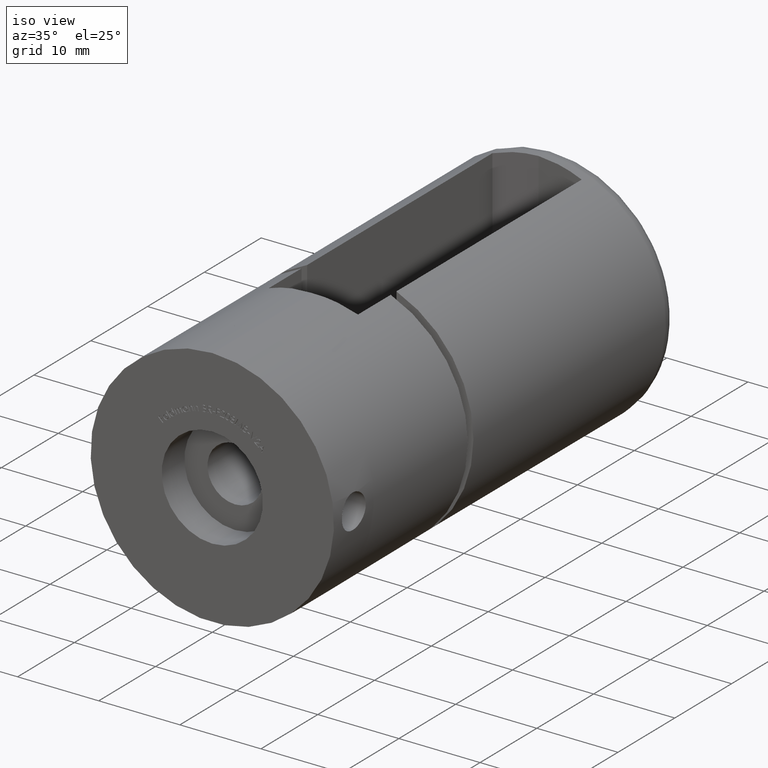
[diagram: clean part render]
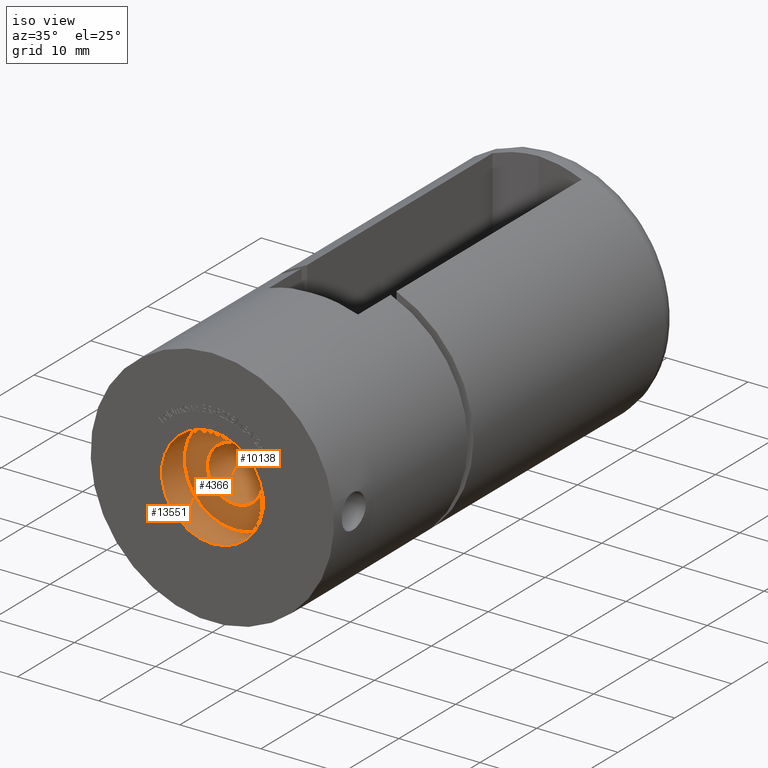
[diagram: same view with one multi-face feature highlighted, each face labeled with its STEP entity id]
A machine part, iso view. The highlighted faces form ONE feature: a stepped (counterbored) hole: 2 coaxial cylindrical walls of radii 3.4 -> 6.25 mm joined by 1 annular planar shoulder face(s). The faces share edges in the B-rep.
Their STEP definitions:
[1] entity #13551 (Cylinder):
#564 = CARTESIAN_POINT ( 'NONE',  ( 0.0000000000000000000, 4.000000000000000000, 0.0000000000000000000 ) ) ;
#1675 = VERTEX_POINT ( 'NONE', #13008 ) ;
#1900 = DIRECTION ( 'NONE',  ( -0.0000000000000000000, -1.000000000000000000, -0.0000000000000000000 ) ) ;
#2476 = ORIENTED_EDGE ( 'NONE', *, *, #10586, .T. ) ;
#2746 = CARTESIAN_POINT ( 'NONE',  ( 0.0000000000000000000, 0.0000000000000000000, 0.0000000000000000000 ) ) ;
#3166 = EDGE_LOOP ( 'NONE', ( #2476 ) ) ;
#3250 = DIRECTION ( 'NONE',  ( 0.0000000000000000000, 0.0000000000000000000, -1.000000000000000000 ) ) ;
#4951 = CARTESIAN_POINT ( 'NONE',  ( 0.0000000000000000000, 4.000000000000000000, -6.250000000000000000 ) ) ;
#6205 = CARTESIAN_POINT ( 'NONE',  ( 0.0000000000000000000, 4.000000000000000000, 0.0000000000000000000 ) ) ;
#6576 = AXIS2_PLACEMENT_3D ( 'NONE', #2746, #9501, #12079 ) ;
#7559 = DIRECTION ( 'NONE',  ( 0.0000000000000000000, -1.000000000000000000, 0.0000000000000000000 ) ) ;
#7970 = ORIENTED_EDGE ( 'NONE', *, *, #13789, .F. ) ;
#9501 = DIRECTION ( 'NONE',  ( 0.0000000000000000000, -1.000000000000000000, 0.0000000000000000000 ) ) ;
#10123 = CIRCLE ( 'NONE', #6576, 6.250000000000000000 ) ;
#10586 = EDGE_CURVE ( 'NONE', #1675, #1675, #10123, .T. ) ;
#12079 = DIRECTION ( 'NONE',  ( 0.0000000000000000000, 0.0000000000000000000, -1.000000000000000000 ) ) ;
#12389 = AXIS2_PLACEMENT_3D ( 'NONE', #6205, #7559, #16926 ) ;
#13008 = CARTESIAN_POINT ( 'NONE',  ( 0.0000000000000000000, 0.0000000000000000000, -6.250000000000000000 ) ) ;
#13551 = ADVANCED_FACE ( 'NONE', ( #17301, #15448 ), #15849, .F. ) ;
#13775 = EDGE_LOOP ( 'NONE', ( #7970 ) ) ;
#13789 = EDGE_CURVE ( 'NONE', #14863, #14863, #15019, .T. ) ;
#14863 = VERTEX_POINT ( 'NONE', #4951 ) ;
#15019 = CIRCLE ( 'NONE', #12389, 6.250000000000000000 ) ;
#15448 = FACE_OUTER_BOUND ( 'NONE', #3166, .T. ) ;
#15849 = CYLINDRICAL_SURFACE ( 'NONE', #16615, 6.250000000000000000 ) ;
#16615 = AXIS2_PLACEMENT_3D ( 'NONE', #564, #1900, #3250 ) ;
#16926 = DIRECTION ( 'NONE',  ( 0.0000000000000000000, 0.0000000000000000000, -1.000000000000000000 ) ) ;
#17301 = FACE_OUTER_BOUND ( 'NONE', #13775, .T. ) ;
[2] entity #10138 (Cylinder):
#360 = CARTESIAN_POINT ( 'NONE',  ( 0.0000000000000000000, 4.000000000000000000, -0.0000000000000000000 ) ) ;
#380 = DIRECTION ( 'NONE',  ( 0.0000000000000000000, 0.0000000000000000000, -1.000000000000000000 ) ) ;
#386 = CIRCLE ( 'NONE', #14635, 3.399999999999998600 ) ;
#1556 = FACE_OUTER_BOUND ( 'NONE', #6999, .T. ) ;
#3481 = DIRECTION ( 'NONE',  ( 0.0000000000000000000, -1.000000000000000000, 0.0000000000000000000 ) ) ;
#3611 = CARTESIAN_POINT ( 'NONE',  ( 0.0000000000000000000, 13.15000000000000000, 3.399999999999997700 ) ) ;
#4502 = DIRECTION ( 'NONE',  ( -0.0000000000000000000, -1.000000000000000000, -0.0000000000000000000 ) ) ;
#4836 = EDGE_LOOP ( 'NONE', ( #8199 ) ) ;
#6501 = ORIENTED_EDGE ( 'NONE', *, *, #12718, .T. ) ;
#6999 = EDGE_LOOP ( 'NONE', ( #6501 ) ) ;
#8199 = ORIENTED_EDGE ( 'NONE', *, *, #15761, .F. ) ;
#8816 = DIRECTION ( 'NONE',  ( 0.0000000000000000000, 0.0000000000000000000, 1.000000000000000000 ) ) ;
#9043 = CARTESIAN_POINT ( 'NONE',  ( 0.0000000000000000000, 4.000000000000000000, -3.399999999999998600 ) ) ;
#9617 = VERTEX_POINT ( 'NONE', #3611 ) ;
#9903 = CYLINDRICAL_SURFACE ( 'NONE', #13161, 3.399999999999997700 ) ;
#10138 = ADVANCED_FACE ( 'NONE', ( #1556, #13678 ), #9903, .F. ) ;
#10890 = VERTEX_POINT ( 'NONE', #9043 ) ;
#10954 = CARTESIAN_POINT ( 'NONE',  ( 0.0000000000000000000, 4.000000000000000000, 0.0000000000000000000 ) ) ;
#11043 = DIRECTION ( 'NONE',  ( -0.0000000000000000000, -1.000000000000000000, -0.0000000000000000000 ) ) ;
#12718 = EDGE_CURVE ( 'NONE', #10890, #10890, #386, .T. ) ;
#12873 = CARTESIAN_POINT ( 'NONE',  ( 0.0000000000000000000, 13.15000000000000000, 0.0000000000000000000 ) ) ;
#13161 = AXIS2_PLACEMENT_3D ( 'NONE', #360, #11043, #16560 ) ;
#13678 = FACE_OUTER_BOUND ( 'NONE', #4836, .T. ) ;
#14635 = AXIS2_PLACEMENT_3D ( 'NONE', #10954, #4502, #380 ) ;
#15557 = AXIS2_PLACEMENT_3D ( 'NONE', #12873, #3481, #8816 ) ;
#15761 = EDGE_CURVE ( 'NONE', #9617, #9617, #16108, .T. ) ;
#16108 = CIRCLE ( 'NONE', #15557, 3.399999999999997700 ) ;
#16560 = DIRECTION ( 'NONE',  ( 0.0000000000000000000, 0.0000000000000000000, -1.000000000000000000 ) ) ;
[3] entity #4366 (Plane):
#380 = DIRECTION ( 'NONE',  ( 0.0000000000000000000, 0.0000000000000000000, -1.000000000000000000 ) ) ;
#386 = CIRCLE ( 'NONE', #14635, 3.399999999999998600 ) ;
#4296 = PLANE ( 'NONE',  #15811 ) ;
#4366 = ADVANCED_FACE ( 'NONE', ( #12053, #8514 ), #4296, .T. ) ;
#4502 = DIRECTION ( 'NONE',  ( -0.0000000000000000000, -1.000000000000000000, -0.0000000000000000000 ) ) ;
#4951 = CARTESIAN_POINT ( 'NONE',  ( 0.0000000000000000000, 4.000000000000000000, -6.250000000000000000 ) ) ;
#5679 = CARTESIAN_POINT ( 'NONE',  ( 0.0000000000000000000, 4.000000000000000000, 0.0000000000000000000 ) ) ;
#6205 = CARTESIAN_POINT ( 'NONE',  ( 0.0000000000000000000, 4.000000000000000000, 0.0000000000000000000 ) ) ;
#6799 = EDGE_LOOP ( 'NONE', ( #14286 ) ) ;
#7559 = DIRECTION ( 'NONE',  ( 0.0000000000000000000, -1.000000000000000000, 0.0000000000000000000 ) ) ;
#8241 = DIRECTION ( 'NONE',  ( 0.0000000000000000000, -1.000000000000000000, 0.0000000000000000000 ) ) ;
#8357 = DIRECTION ( 'NONE',  ( 0.0000000000000000000, -0.0000000000000000000, -1.000000000000000000 ) ) ;
#8514 = FACE_OUTER_BOUND ( 'NONE', #6799, .T. ) ;
#9043 = CARTESIAN_POINT ( 'NONE',  ( 0.0000000000000000000, 4.000000000000000000, -3.399999999999998600 ) ) ;
#10890 = VERTEX_POINT ( 'NONE', #9043 ) ;
#10954 = CARTESIAN_POINT ( 'NONE',  ( 0.0000000000000000000, 4.000000000000000000, 0.0000000000000000000 ) ) ;
#12053 = FACE_BOUND ( 'NONE', #16857, .T. ) ;
#12389 = AXIS2_PLACEMENT_3D ( 'NONE', #6205, #7559, #16926 ) ;
#12718 = EDGE_CURVE ( 'NONE', #10890, #10890, #386, .T. ) ;
#13789 = EDGE_CURVE ( 'NONE', #14863, #14863, #15019, .T. ) ;
#14286 = ORIENTED_EDGE ( 'NONE', *, *, #13789, .T. ) ;
#14635 = AXIS2_PLACEMENT_3D ( 'NONE', #10954, #4502, #380 ) ;
#14863 = VERTEX_POINT ( 'NONE', #4951 ) ;
#15019 = CIRCLE ( 'NONE', #12389, 6.250000000000000000 ) ;
#15532 = ORIENTED_EDGE ( 'NONE', *, *, #12718, .F. ) ;
#15811 = AXIS2_PLACEMENT_3D ( 'NONE', #5679, #8241, #8357 ) ;
#16857 = EDGE_LOOP ( 'NONE', ( #15532 ) ) ;
#16926 = DIRECTION ( 'NONE',  ( 0.0000000000000000000, 0.0000000000000000000, -1.000000000000000000 ) ) ;